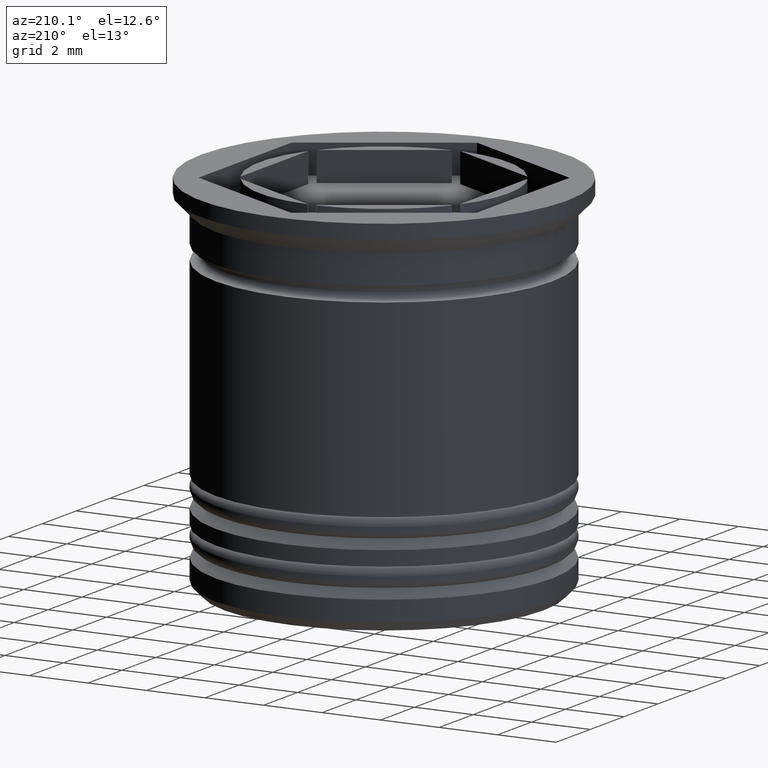
[diagram: clean part render]
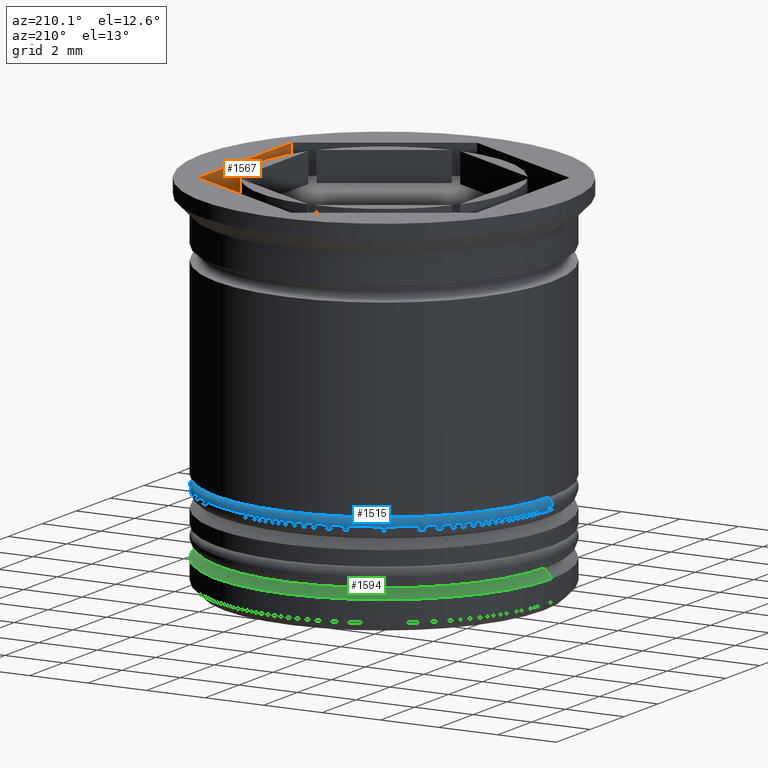
[diagram: same view with three faces highlighted in distinct colors, each labeled with its STEP entity id]
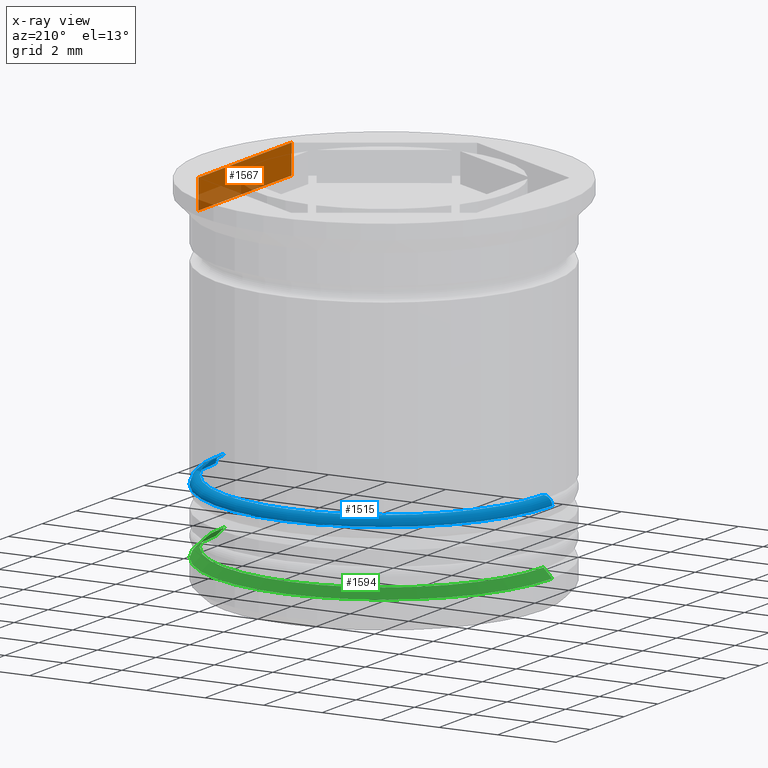
[diagram: x-ray of the same camera — body ghosted, the three highlighted faces saturated]
A machine part, auxiliary view with three faces highlighted in distinct colors.
The next image is the same camera in x-ray (body ghosted, the three faces saturated) — at least one of them is partly hidden behind the body in this view.
Their STEP definitions:

[orange] entity #1567 — the highlighted planar face has unit normal (1, -0, 0).
#8 = VECTOR ( 'NONE', #430, 1000.000000000000000 ) ;
#44 = LINE ( 'NONE', #658, #1705 ) ;
#136 = VERTEX_POINT ( 'NONE', #1244 ) ;
#235 = EDGE_CURVE ( 'NONE', #872, #1017, #44, .T. ) ;
#240 = DIRECTION ( 'NONE',  ( 1.000000000000000000, -0.000000000000000000, 0.000000000000000000 ) ) ;
#385 = VECTOR ( 'NONE', #919, 1000.000000000000000 ) ;
#430 = DIRECTION ( 'NONE',  ( 0.000000000000000000, 1.000000000000000000, 0.000000000000000000 ) ) ;
#444 = DIRECTION ( 'NONE',  ( 0.000000000000000000, 1.000000000000000000, 0.000000000000000000 ) ) ;
#534 = PLANE ( 'NONE',  #1311 ) ;
#594 = CARTESIAN_POINT ( 'NONE',  ( 4.750000000000000888, -2.742413778650722556, 0.000000000000000000 ) ) ;
#658 = CARTESIAN_POINT ( 'NONE',  ( 4.750000000000000888, -2.742413778650722556, -1.000000000000000000 ) ) ;
#745 = CARTESIAN_POINT ( 'NONE',  ( 4.750000000000000888, -2.742413778650722556, -1.000000000000000000 ) ) ;
#753 = ORIENTED_EDGE ( 'NONE', *, *, #1065, .F. ) ;
#768 = EDGE_LOOP ( 'NONE', ( #1258, #753, #1907, #897 ) ) ;
#872 = VERTEX_POINT ( 'NONE', #1283 ) ;
#897 = ORIENTED_EDGE ( 'NONE', *, *, #235, .T. ) ;
#904 = LINE ( 'NONE', #745, #8 ) ;
#913 = LINE ( 'NONE', #594, #1207 ) ;
#919 = DIRECTION ( 'NONE',  ( -0.000000000000000000, -0.000000000000000000, 1.000000000000000000 ) ) ;
#1017 = VERTEX_POINT ( 'NONE', #1975 ) ;
#1050 = LINE ( 'NONE', #1669, #385 ) ;
#1065 = EDGE_CURVE ( 'NONE', #1939, #136, #1050, .T. ) ;
#1207 = VECTOR ( 'NONE', #444, 1000.000000000000000 ) ;
#1244 = CARTESIAN_POINT ( 'NONE',  ( 4.750000000000000888, 2.742413778650723888, 0.000000000000000000 ) ) ;
#1258 = ORIENTED_EDGE ( 'NONE', *, *, #1478, .T. ) ;
#1283 = CARTESIAN_POINT ( 'NONE',  ( 4.750000000000000888, -2.742413778650722556, -1.000000000000000000 ) ) ;
#1311 = AXIS2_PLACEMENT_3D ( 'NONE', #1776, #240, #1480 ) ;
#1317 = EDGE_CURVE ( 'NONE', #872, #1939, #904, .T. ) ;
#1478 = EDGE_CURVE ( 'NONE', #1017, #136, #913, .T. ) ;
#1480 = DIRECTION ( 'NONE',  ( 0.000000000000000000, 0.000000000000000000, -1.000000000000000000 ) ) ;
#1567 = ADVANCED_FACE ( 'NONE', ( #1928 ), #534, .F. ) ;
#1669 = CARTESIAN_POINT ( 'NONE',  ( 4.750000000000000888, 2.742413778650723888, -1.000000000000000000 ) ) ;
#1670 = CARTESIAN_POINT ( 'NONE',  ( 4.750000000000000888, 2.742413778650723888, -1.000000000000000000 ) ) ;
#1705 = VECTOR ( 'NONE', #1729, 1000.000000000000000 ) ;
#1729 = DIRECTION ( 'NONE',  ( -0.000000000000000000, -0.000000000000000000, 1.000000000000000000 ) ) ;
#1776 = CARTESIAN_POINT ( 'NONE',  ( 4.750000000000000888, -2.742413778650722556, -1.000000000000000000 ) ) ;
#1907 = ORIENTED_EDGE ( 'NONE', *, *, #1317, .F. ) ;
#1928 = FACE_OUTER_BOUND ( 'NONE', #768, .T. ) ;
#1939 = VERTEX_POINT ( 'NONE', #1670 ) ;
#1975 = CARTESIAN_POINT ( 'NONE',  ( 4.750000000000000888, -2.742413778650722556, 0.000000000000000000 ) ) ;

[blue] entity #1515 — the highlighted toroidal blend (fillet) surface has major radius 5.45 mm and minor (blend) radius 0.3 mm.
#2 = CIRCLE ( 'NONE', #1127, 5.450000000000001954 ) ;
#61 = EDGE_CURVE ( 'NONE', #473, #793, #1547, .T. ) ;
#119 = CARTESIAN_POINT ( 'NONE',  ( -5.450000000000001954, 0.000000000000000000, -9.000000000000001776 ) ) ;
#124 = CIRCLE ( 'NONE', #1518, 5.750000000000001776 ) ;
#138 = CARTESIAN_POINT ( 'NONE',  ( 0.000000000000000000, 0.000000000000000000, -9.000000000000001776 ) ) ;
#141 = EDGE_CURVE ( 'NONE', #1915, #793, #124, .T. ) ;
#196 = EDGE_CURVE ( 'NONE', #473, #1334, #2, .T. ) ;
#215 = CARTESIAN_POINT ( 'NONE',  ( 5.750000000000001776, 0.000000000000000000, -9.300000000000002487 ) ) ;
#343 = DIRECTION ( 'NONE',  ( -1.224646799147353207E-16, 1.000000000000000000, 0.000000000000000000 ) ) ;
#473 = VERTEX_POINT ( 'NONE', #1642 ) ;
#536 = EDGE_CURVE ( 'NONE', #1334, #1915, #1456, .T. ) ;
#560 = ORIENTED_EDGE ( 'NONE', *, *, #61, .T. ) ;
#633 = DIRECTION ( 'NONE',  ( -1.000000000000000000, -1.224646799147353207E-16, 0.000000000000000000 ) ) ;
#683 = CARTESIAN_POINT ( 'NONE',  ( -5.450000000000001954, 0.000000000000000000, -9.300000000000002487 ) ) ;
#776 = DIRECTION ( 'NONE',  ( -1.000000000000000000, 0.000000000000000000, 0.000000000000000000 ) ) ;
#793 = VERTEX_POINT ( 'NONE', #215 ) ;
#807 = DIRECTION ( 'NONE',  ( 0.000000000000000000, 0.000000000000000000, -1.000000000000000000 ) ) ;
#839 = DIRECTION ( 'NONE',  ( 0.000000000000000000, 0.000000000000000000, -1.000000000000000000 ) ) ;
#961 = AXIS2_PLACEMENT_3D ( 'NONE', #1728, #343, #633 ) ;
#971 = TOROIDAL_SURFACE ( 'NONE', #1906, 5.450000000000001954, 0.2999999999999999889 ) ;
#1034 = ORIENTED_EDGE ( 'NONE', *, *, #141, .F. ) ;
#1097 = DIRECTION ( 'NONE',  ( -0.000000000000000000, -0.000000000000000000, 1.000000000000000000 ) ) ;
#1127 = AXIS2_PLACEMENT_3D ( 'NONE', #138, #1097, #776 ) ;
#1334 = VERTEX_POINT ( 'NONE', #119 ) ;
#1342 = DIRECTION ( 'NONE',  ( -1.000000000000000000, 0.000000000000000000, 0.000000000000000000 ) ) ;
#1366 = FACE_OUTER_BOUND ( 'NONE', #1796, .T. ) ;
#1387 = DIRECTION ( 'NONE',  ( 0.000000000000000000, 0.000000000000000000, -1.000000000000000000 ) ) ;
#1456 = CIRCLE ( 'NONE', #1972, 0.2999999999999999334 ) ;
#1515 = ADVANCED_FACE ( 'NONE', ( #1366 ), #971, .T. ) ;
#1518 = AXIS2_PLACEMENT_3D ( 'NONE', #1692, #1387, #1846 ) ;
#1547 = CIRCLE ( 'NONE', #961, 0.2999999999999999334 ) ;
#1613 = CARTESIAN_POINT ( 'NONE',  ( 0.000000000000000000, 0.000000000000000000, -9.300000000000002487 ) ) ;
#1621 = ORIENTED_EDGE ( 'NONE', *, *, #536, .F. ) ;
#1631 = CARTESIAN_POINT ( 'NONE',  ( -5.750000000000001776, 7.041719095097282852E-16, -9.300000000000002487 ) ) ;
#1642 = CARTESIAN_POINT ( 'NONE',  ( 5.450000000000001954, 6.858022075225179538E-16, -9.000000000000001776 ) ) ;
#1692 = CARTESIAN_POINT ( 'NONE',  ( 0.000000000000000000, 0.000000000000000000, -9.300000000000002487 ) ) ;
#1728 = CARTESIAN_POINT ( 'NONE',  ( 5.450000000000001954, 6.674325055353077210E-16, -9.300000000000002487 ) ) ;
#1751 = DIRECTION ( 'NONE',  ( -0.000000000000000000, -1.000000000000000000, -0.000000000000000000 ) ) ;
#1796 = EDGE_LOOP ( 'NONE', ( #1962, #560, #1034, #1621 ) ) ;
#1846 = DIRECTION ( 'NONE',  ( -1.000000000000000000, 0.000000000000000000, 0.000000000000000000 ) ) ;
#1906 = AXIS2_PLACEMENT_3D ( 'NONE', #1613, #839, #1342 ) ;
#1915 = VERTEX_POINT ( 'NONE', #1631 ) ;
#1962 = ORIENTED_EDGE ( 'NONE', *, *, #196, .F. ) ;
#1972 = AXIS2_PLACEMENT_3D ( 'NONE', #683, #1751, #807 ) ;

[green] entity #1594 — the highlighted conical surface has half-angle 45 deg.
#78 = ORIENTED_EDGE ( 'NONE', *, *, #1149, .F. ) ;
#112 = DIRECTION ( 'NONE',  ( 0.7071067811865512365, 8.659560562354978464E-17, -0.7071067811865439090 ) ) ;
#187 = AXIS2_PLACEMENT_3D ( 'NONE', #928, #1825, #1407 ) ;
#236 = ORIENTED_EDGE ( 'NONE', *, *, #1650, .F. ) ;
#305 = VERTEX_POINT ( 'NONE', #1578 ) ;
#377 = CARTESIAN_POINT ( 'NONE',  ( 0.000000000000000000, 0.000000000000000000, -11.00000000000000178 ) ) ;
#422 = AXIS2_PLACEMENT_3D ( 'NONE', #377, #1158, #699 ) ;
#454 = AXIS2_PLACEMENT_3D ( 'NONE', #1124, #1167, #1452 ) ;
#507 = ORIENTED_EDGE ( 'NONE', *, *, #1291, .F. ) ;
#691 = EDGE_LOOP ( 'NONE', ( #507, #1028, #78, #236 ) ) ;
#699 = DIRECTION ( 'NONE',  ( -1.000000000000000000, 0.000000000000000000, 0.000000000000000000 ) ) ;
#744 = LINE ( 'NONE', #1675, #1432 ) ;
#754 = LINE ( 'NONE', #1503, #1944 ) ;
#885 = DIRECTION ( 'NONE',  ( -0.7071067811865512365, 0.000000000000000000, -0.7071067811865439090 ) ) ;
#928 = CARTESIAN_POINT ( 'NONE',  ( 0.000000000000000000, 0.000000000000000000, -11.20000000000000639 ) ) ;
#1028 = ORIENTED_EDGE ( 'NONE', *, *, #1318, .T. ) ;
#1047 = CARTESIAN_POINT ( 'NONE',  ( 5.750000000000001776, 0.000000000000000000, -11.50000000000000533 ) ) ;
#1068 = CIRCLE ( 'NONE', #187, 5.450000000000000178 ) ;
#1124 = CARTESIAN_POINT ( 'NONE',  ( 0.000000000000000000, 0.000000000000000000, -11.50000000000000533 ) ) ;
#1140 = VERTEX_POINT ( 'NONE', #1303 ) ;
#1149 = EDGE_CURVE ( 'NONE', #305, #1218, #1204, .T. ) ;
#1158 = DIRECTION ( 'NONE',  ( 0.000000000000000000, 0.000000000000000000, -1.000000000000000000 ) ) ;
#1167 = DIRECTION ( 'NONE',  ( 0.000000000000000000, 0.000000000000000000, -1.000000000000000000 ) ) ;
#1168 = CONICAL_SURFACE ( 'NONE', #422, 5.249999999999992895, 0.7853981633974533860 ) ;
#1204 = CIRCLE ( 'NONE', #454, 5.750000000000001776 ) ;
#1215 = CARTESIAN_POINT ( 'NONE',  ( -5.450000000000000178, 6.674325055353075238E-16, -11.20000000000000639 ) ) ;
#1218 = VERTEX_POINT ( 'NONE', #1047 ) ;
#1291 = EDGE_CURVE ( 'NONE', #1140, #1350, #1068, .T. ) ;
#1303 = CARTESIAN_POINT ( 'NONE',  ( 5.450000000000000178, 0.000000000000000000, -11.20000000000000639 ) ) ;
#1318 = EDGE_CURVE ( 'NONE', #1140, #1218, #754, .T. ) ;
#1350 = VERTEX_POINT ( 'NONE', #1215 ) ;
#1407 = DIRECTION ( 'NONE',  ( -1.000000000000000000, 0.000000000000000000, 0.000000000000000000 ) ) ;
#1432 = VECTOR ( 'NONE', #885, 1000.000000000000000 ) ;
#1452 = DIRECTION ( 'NONE',  ( -1.000000000000000000, 0.000000000000000000, 0.000000000000000000 ) ) ;
#1503 = CARTESIAN_POINT ( 'NONE',  ( 5.249999999999992895, 6.429395695523595278E-16, -11.00000000000000178 ) ) ;
#1578 = CARTESIAN_POINT ( 'NONE',  ( -5.750000000000001776, 7.041719095097282852E-16, -11.50000000000000533 ) ) ;
#1594 = ADVANCED_FACE ( 'NONE', ( #1925 ), #1168, .T. ) ;
#1650 = EDGE_CURVE ( 'NONE', #1350, #305, #744, .T. ) ;
#1675 = CARTESIAN_POINT ( 'NONE',  ( -5.249999999999992895, 0.000000000000000000, -11.00000000000000178 ) ) ;
#1825 = DIRECTION ( 'NONE',  ( -0.000000000000000000, -0.000000000000000000, 1.000000000000000000 ) ) ;
#1925 = FACE_OUTER_BOUND ( 'NONE', #691, .T. ) ;
#1944 = VECTOR ( 'NONE', #112, 1000.000000000000000 ) ;